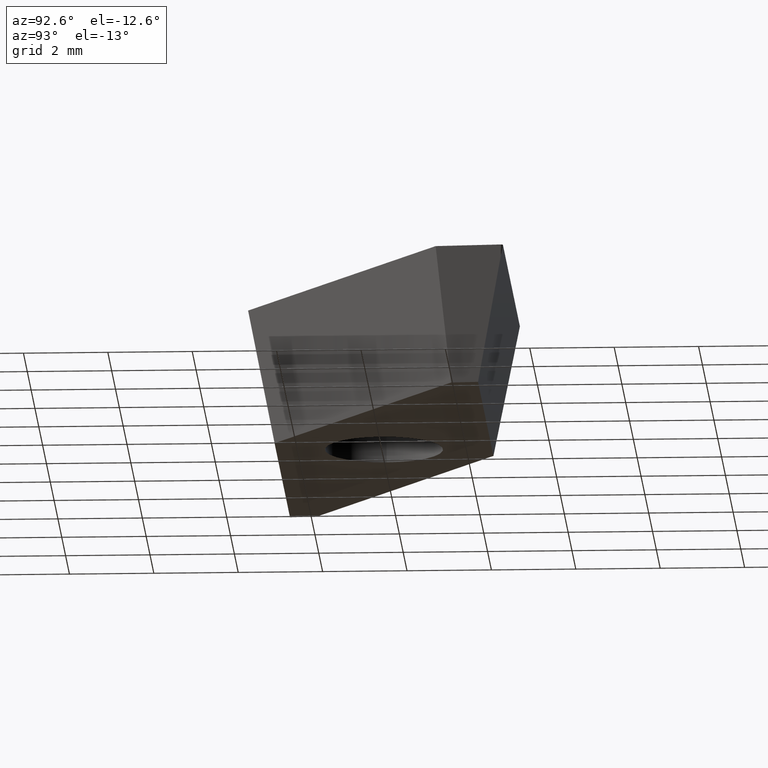
[diagram: clean part render]
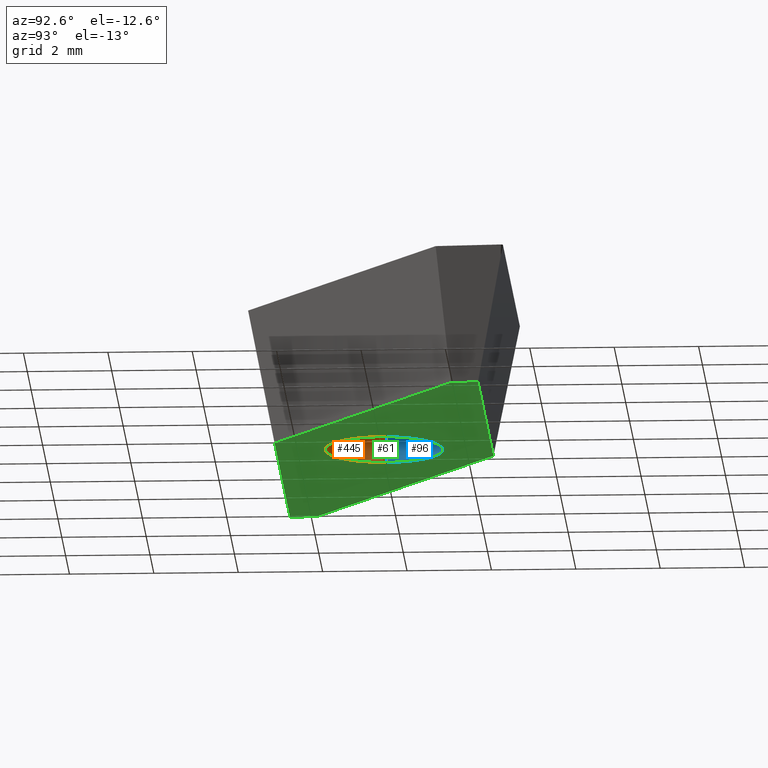
[diagram: same view with three faces highlighted in distinct colors, each labeled with its STEP entity id]
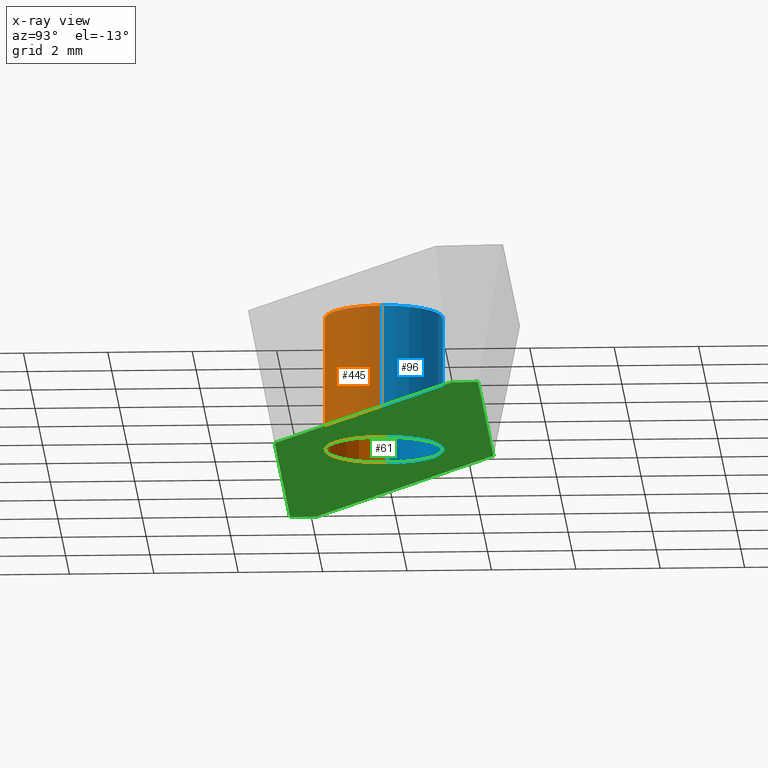
[diagram: x-ray of the same camera — body ghosted, the three highlighted faces saturated]
A machine part, auxiliary view with three faces highlighted in distinct colors.
The next image is the same camera in x-ray (body ghosted, the three faces saturated) — at least one of them is partly hidden behind the body in this view.
Their STEP definitions:

[orange] entity #445 — the highlighted cylindrical surface (partial cylindrical patch) has radius 1.4 mm, axis along (-0, -0, 1).
#56 = DIRECTION ( 'NONE',  ( 1.000000000000000000, 0.0000000000000000000, 0.0000000000000000000 ) ) ;
#82 = DIRECTION ( 'NONE',  ( 0.0000000000000000000, 0.0000000000000000000, 1.000000000000000000 ) ) ;
#87 = CARTESIAN_POINT ( 'NONE',  ( 1.399999999999999900, 0.0000000000000000000, 0.0000000000000000000 ) ) ;
#106 = CARTESIAN_POINT ( 'NONE',  ( 0.0000000000000000000, 0.0000000000000000000, 0.0000000000000000000 ) ) ;
#107 = DIRECTION ( 'NONE',  ( -0.0000000000000000000, -0.0000000000000000000, 1.000000000000000000 ) ) ;
#112 = VERTEX_POINT ( 'NONE', #128 ) ;
#115 = DIRECTION ( 'NONE',  ( 1.000000000000000000, 0.0000000000000000000, 0.0000000000000000000 ) ) ;
#120 = CARTESIAN_POINT ( 'NONE',  ( -1.399999999999999900, 1.714505518806294100E-016, -3.180000000000000200 ) ) ;
#126 = DIRECTION ( 'NONE',  ( -0.0000000000000000000, -0.0000000000000000000, 1.000000000000000000 ) ) ;
#128 = CARTESIAN_POINT ( 'NONE',  ( -1.399999999999999900, 1.714505518806294100E-016, 0.0000000000000000000 ) ) ;
#134 = CARTESIAN_POINT ( 'NONE',  ( 1.399999999999999900, 0.0000000000000000000, -3.180000000000000200 ) ) ;
#140 = AXIS2_PLACEMENT_3D ( 'NONE', #161, #107, #115 ) ;
#149 = ORIENTED_EDGE ( 'NONE', *, *, #354, .T. ) ;
#153 = DIRECTION ( 'NONE',  ( -0.0000000000000000000, -0.0000000000000000000, 1.000000000000000000 ) ) ;
#155 = AXIS2_PLACEMENT_3D ( 'NONE', #173, #172, #171 ) ;
#161 = CARTESIAN_POINT ( 'NONE',  ( 0.0000000000000000000, 0.0000000000000000000, -3.180000000000000200 ) ) ;
#171 = DIRECTION ( 'NONE',  ( 1.000000000000000000, 0.0000000000000000000, 0.0000000000000000000 ) ) ;
#172 = DIRECTION ( 'NONE',  ( 0.0000000000000000000, 0.0000000000000000000, 1.000000000000000000 ) ) ;
#173 = CARTESIAN_POINT ( 'NONE',  ( 0.0000000000000000000, 0.0000000000000000000, -3.180000000000000200 ) ) ;
#198 = ORIENTED_EDGE ( 'NONE', *, *, #409, .F. ) ;
#207 = CARTESIAN_POINT ( 'NONE',  ( -1.399999999999999900, 1.714505518806294100E-016, -3.180000000000000200 ) ) ;
#210 = ORIENTED_EDGE ( 'NONE', *, *, #399, .F. ) ;
#250 = VERTEX_POINT ( 'NONE', #207 ) ;
#263 = VECTOR ( 'NONE', #153, 1000.000000000000000 ) ;
#281 = VERTEX_POINT ( 'NONE', #87 ) ;
#295 = LINE ( 'NONE', #120, #263 ) ;
#297 = VECTOR ( 'NONE', #126, 1000.000000000000000 ) ;
#308 = CYLINDRICAL_SURFACE ( 'NONE', #140, 1.399999999999999900 ) ;
#310 = VERTEX_POINT ( 'NONE', #398 ) ;
#320 = FACE_OUTER_BOUND ( 'NONE', #347, .T. ) ;
#343 = LINE ( 'NONE', #134, #297 ) ;
#347 = EDGE_LOOP ( 'NONE', ( #210, #388, #149, #198 ) ) ;
#348 = CIRCLE ( 'NONE', #420, 1.399999999999999900 ) ;
#354 = EDGE_CURVE ( 'NONE', #112, #281, #348, .T. ) ;
#375 = CIRCLE ( 'NONE', #155, 1.399999999999999900 ) ;
#388 = ORIENTED_EDGE ( 'NONE', *, *, #423, .T. ) ;
#398 = CARTESIAN_POINT ( 'NONE',  ( 1.399999999999999900, 0.0000000000000000000, -3.180000000000000200 ) ) ;
#399 = EDGE_CURVE ( 'NONE', #250, #310, #375, .T. ) ;
#409 = EDGE_CURVE ( 'NONE', #310, #281, #343, .T. ) ;
#420 = AXIS2_PLACEMENT_3D ( 'NONE', #106, #82, #56 ) ;
#423 = EDGE_CURVE ( 'NONE', #250, #112, #295, .T. ) ;
#445 = ADVANCED_FACE ( 'NONE', ( #320 ), #308, .F. ) ;

[blue] entity #96 — the highlighted cylindrical surface (partial cylindrical patch) has radius 1.4 mm, axis along (-0, -0, 1).
#19 = DIRECTION ( 'NONE',  ( -0.0000000000000000000, -0.0000000000000000000, 1.000000000000000000 ) ) ;
#76 = CYLINDRICAL_SURFACE ( 'NONE', #385, 1.399999999999999900 ) ;
#87 = CARTESIAN_POINT ( 'NONE',  ( 1.399999999999999900, 0.0000000000000000000, 0.0000000000000000000 ) ) ;
#88 = AXIS2_PLACEMENT_3D ( 'NONE', #242, #238, #237 ) ;
#96 = ADVANCED_FACE ( 'NONE', ( #117 ), #76, .F. ) ;
#112 = VERTEX_POINT ( 'NONE', #128 ) ;
#117 = FACE_OUTER_BOUND ( 'NONE', #334, .T. ) ;
#120 = CARTESIAN_POINT ( 'NONE',  ( -1.399999999999999900, 1.714505518806294100E-016, -3.180000000000000200 ) ) ;
#126 = DIRECTION ( 'NONE',  ( -0.0000000000000000000, -0.0000000000000000000, 1.000000000000000000 ) ) ;
#128 = CARTESIAN_POINT ( 'NONE',  ( -1.399999999999999900, 1.714505518806294100E-016, 0.0000000000000000000 ) ) ;
#134 = CARTESIAN_POINT ( 'NONE',  ( 1.399999999999999900, 0.0000000000000000000, -3.180000000000000200 ) ) ;
#153 = DIRECTION ( 'NONE',  ( -0.0000000000000000000, -0.0000000000000000000, 1.000000000000000000 ) ) ;
#189 = AXIS2_PLACEMENT_3D ( 'NONE', #197, #203, #206 ) ;
#197 = CARTESIAN_POINT ( 'NONE',  ( 0.0000000000000000000, 0.0000000000000000000, -3.180000000000000200 ) ) ;
#203 = DIRECTION ( 'NONE',  ( 0.0000000000000000000, 0.0000000000000000000, 1.000000000000000000 ) ) ;
#206 = DIRECTION ( 'NONE',  ( 1.000000000000000000, 0.0000000000000000000, 0.0000000000000000000 ) ) ;
#207 = CARTESIAN_POINT ( 'NONE',  ( -1.399999999999999900, 1.714505518806294100E-016, -3.180000000000000200 ) ) ;
#237 = DIRECTION ( 'NONE',  ( 1.000000000000000000, 0.0000000000000000000, 0.0000000000000000000 ) ) ;
#238 = DIRECTION ( 'NONE',  ( 0.0000000000000000000, 0.0000000000000000000, 1.000000000000000000 ) ) ;
#242 = CARTESIAN_POINT ( 'NONE',  ( 0.0000000000000000000, 0.0000000000000000000, 0.0000000000000000000 ) ) ;
#250 = VERTEX_POINT ( 'NONE', #207 ) ;
#263 = VECTOR ( 'NONE', #153, 1000.000000000000000 ) ;
#281 = VERTEX_POINT ( 'NONE', #87 ) ;
#295 = LINE ( 'NONE', #120, #263 ) ;
#297 = VECTOR ( 'NONE', #126, 1000.000000000000000 ) ;
#310 = VERTEX_POINT ( 'NONE', #398 ) ;
#334 = EDGE_LOOP ( 'NONE', ( #387, #382, #384, #351 ) ) ;
#342 = EDGE_CURVE ( 'NONE', #310, #250, #446, .T. ) ;
#343 = LINE ( 'NONE', #134, #297 ) ;
#351 = ORIENTED_EDGE ( 'NONE', *, *, #381, .T. ) ;
#381 = EDGE_CURVE ( 'NONE', #281, #112, #430, .T. ) ;
#382 = ORIENTED_EDGE ( 'NONE', *, *, #342, .F. ) ;
#384 = ORIENTED_EDGE ( 'NONE', *, *, #409, .T. ) ;
#385 = AXIS2_PLACEMENT_3D ( 'NONE', #413, #19, #434 ) ;
#387 = ORIENTED_EDGE ( 'NONE', *, *, #423, .F. ) ;
#398 = CARTESIAN_POINT ( 'NONE',  ( 1.399999999999999900, 0.0000000000000000000, -3.180000000000000200 ) ) ;
#409 = EDGE_CURVE ( 'NONE', #310, #281, #343, .T. ) ;
#413 = CARTESIAN_POINT ( 'NONE',  ( 0.0000000000000000000, 0.0000000000000000000, -3.180000000000000200 ) ) ;
#423 = EDGE_CURVE ( 'NONE', #250, #112, #295, .T. ) ;
#430 = CIRCLE ( 'NONE', #88, 1.399999999999999900 ) ;
#434 = DIRECTION ( 'NONE',  ( 1.000000000000000000, 0.0000000000000000000, 0.0000000000000000000 ) ) ;
#446 = CIRCLE ( 'NONE', #189, 1.399999999999999900 ) ;

[green] entity #61 — the highlighted planar face has unit normal (0, 0, -1).
#4 = DIRECTION ( 'NONE',  ( -0.8191520442889950200, -0.5735764363510415000, 0.0000000000000000000 ) ) ;
#9 = CARTESIAN_POINT ( 'NONE',  ( -7.237137390861799500, -2.556870616942054300, -3.180000000000000200 ) ) ;
#13 = CARTESIAN_POINT ( 'NONE',  ( 7.283376349052109500, 3.218118526079754900, -3.180000000000000200 ) ) ;
#41 = AXIS2_PLACEMENT_3D ( 'NONE', #147, #274, #163 ) ;
#60 = DIRECTION ( 'NONE',  ( 0.06975647374412545500, 0.9975640502598242000, 0.0000000000000000000 ) ) ;
#61 = ADVANCED_FACE ( 'NONE', ( #168, #166 ), #276, .T. ) ;
#62 = VECTOR ( 'NONE', #4, 1000.000000000000000 ) ;
#71 = LINE ( 'NONE', #418, #62 ) ;
#86 = VERTEX_POINT ( 'NONE', #229 ) ;
#90 = VECTOR ( 'NONE', #133, 1000.000000000000000 ) ;
#92 = LINE ( 'NONE', #312, #90 ) ;
#93 = EDGE_CURVE ( 'NONE', #86, #313, #92, .T. ) ;
#103 = CARTESIAN_POINT ( 'NONE',  ( -0.8061782088420828000, 2.556870616942053400, -3.180000000000000200 ) ) ;
#121 = EDGE_CURVE ( 'NONE', #313, #236, #71, .T. ) ;
#123 = CARTESIAN_POINT ( 'NONE',  ( 1.001073654690762600, -2.556870616942053400, -3.180000000000000200 ) ) ;
#133 = DIRECTION ( 'NONE',  ( -1.000000000000000000, -9.744461978823350000E-017, 0.0000000000000000000 ) ) ;
#144 = CARTESIAN_POINT ( 'NONE',  ( 7.433744630409206500, 2.083801351424741500, -3.180000000000000200 ) ) ;
#147 = CARTESIAN_POINT ( 'NONE',  ( 0.0000000000000000000, 0.0000000000000000000, -3.180000000000000200 ) ) ;
#148 = DIRECTION ( 'NONE',  ( 1.000000000000000000, 9.744461978823350000E-017, 0.0000000000000000000 ) ) ;
#155 = AXIS2_PLACEMENT_3D ( 'NONE', #173, #172, #171 ) ;
#163 = DIRECTION ( 'NONE',  ( -1.000000000000000000, 0.0000000000000000000, -0.0000000000000000000 ) ) ;
#166 = FACE_OUTER_BOUND ( 'NONE', #357, .T. ) ;
#168 = FACE_BOUND ( 'NONE', #304, .T. ) ;
#171 = DIRECTION ( 'NONE',  ( 1.000000000000000000, 0.0000000000000000000, 0.0000000000000000000 ) ) ;
#172 = DIRECTION ( 'NONE',  ( 0.0000000000000000000, 0.0000000000000000000, 1.000000000000000000 ) ) ;
#173 = CARTESIAN_POINT ( 'NONE',  ( 0.0000000000000000000, 0.0000000000000000000, -3.180000000000000200 ) ) ;
#174 = DIRECTION ( 'NONE',  ( 0.8191520442889951300, 0.5735764363510412700, 0.0000000000000000000 ) ) ;
#182 = DIRECTION ( 'NONE',  ( -0.06975647374412608000, -0.9975640502598242000, 0.0000000000000000000 ) ) ;
#189 = AXIS2_PLACEMENT_3D ( 'NONE', #197, #203, #206 ) ;
#197 = CARTESIAN_POINT ( 'NONE',  ( 0.0000000000000000000, 0.0000000000000000000, -3.180000000000000200 ) ) ;
#203 = DIRECTION ( 'NONE',  ( 0.0000000000000000000, 0.0000000000000000000, 1.000000000000000000 ) ) ;
#206 = DIRECTION ( 'NONE',  ( 1.000000000000000000, 0.0000000000000000000, 0.0000000000000000000 ) ) ;
#207 = CARTESIAN_POINT ( 'NONE',  ( -1.399999999999999900, 1.714505518806294100E-016, -3.180000000000000200 ) ) ;
#218 = CARTESIAN_POINT ( 'NONE',  ( -7.283376349052111300, -3.218118526079755300, -3.180000000000000200 ) ) ;
#219 = VERTEX_POINT ( 'NONE', #9 ) ;
#229 = CARTESIAN_POINT ( 'NONE',  ( 7.237137390861797700, 2.556870616942054300, -3.180000000000000200 ) ) ;
#236 = VERTEX_POINT ( 'NONE', #439 ) ;
#239 = VECTOR ( 'NONE', #60, 1000.000000000000100 ) ;
#240 = CARTESIAN_POINT ( 'NONE',  ( 7.192231910145610000, 1.914692324122640600, -3.180000000000000200 ) ) ;
#250 = VERTEX_POINT ( 'NONE', #207 ) ;
#259 = LINE ( 'NONE', #13, #239 ) ;
#266 = VERTEX_POINT ( 'NONE', #240 ) ;
#274 = DIRECTION ( 'NONE',  ( 0.0000000000000000000, 0.0000000000000000000, -1.000000000000000000 ) ) ;
#276 = PLANE ( 'NONE',  #41 ) ;
#280 = VECTOR ( 'NONE', #148, 1000.000000000000000 ) ;
#282 = CARTESIAN_POINT ( 'NONE',  ( 0.8061782088420801400, -2.556870616942053400, -3.180000000000000200 ) ) ;
#285 = VECTOR ( 'NONE', #174, 1000.000000000000000 ) ;
#290 = ORIENTED_EDGE ( 'NONE', *, *, #342, .T. ) ;
#292 = ORIENTED_EDGE ( 'NONE', *, *, #399, .T. ) ;
#293 = ORIENTED_EDGE ( 'NONE', *, *, #93, .F. ) ;
#294 = ORIENTED_EDGE ( 'NONE', *, *, #432, .F. ) ;
#299 = ORIENTED_EDGE ( 'NONE', *, *, #422, .F. ) ;
#300 = ORIENTED_EDGE ( 'NONE', *, *, #414, .F. ) ;
#301 = ORIENTED_EDGE ( 'NONE', *, *, #397, .F. ) ;
#302 = ORIENTED_EDGE ( 'NONE', *, *, #121, .F. ) ;
#304 = EDGE_LOOP ( 'NONE', ( #290, #292 ) ) ;
#310 = VERTEX_POINT ( 'NONE', #398 ) ;
#312 = CARTESIAN_POINT ( 'NONE',  ( -1.001073654690764600, 2.556870616942053400, -3.180000000000000200 ) ) ;
#313 = VERTEX_POINT ( 'NONE', #103 ) ;
#328 = LINE ( 'NONE', #123, #280 ) ;
#342 = EDGE_CURVE ( 'NONE', #310, #250, #446, .T. ) ;
#357 = EDGE_LOOP ( 'NONE', ( #293, #294, #299, #300, #301, #302 ) ) ;
#365 = VERTEX_POINT ( 'NONE', #282 ) ;
#373 = VECTOR ( 'NONE', #182, 1000.000000000000100 ) ;
#375 = CIRCLE ( 'NONE', #155, 1.399999999999999900 ) ;
#397 = EDGE_CURVE ( 'NONE', #236, #219, #404, .T. ) ;
#398 = CARTESIAN_POINT ( 'NONE',  ( 1.399999999999999900, 0.0000000000000000000, -3.180000000000000200 ) ) ;
#399 = EDGE_CURVE ( 'NONE', #250, #310, #375, .T. ) ;
#404 = LINE ( 'NONE', #218, #373 ) ;
#412 = LINE ( 'NONE', #144, #285 ) ;
#414 = EDGE_CURVE ( 'NONE', #219, #365, #328, .T. ) ;
#418 = CARTESIAN_POINT ( 'NONE',  ( -7.433744630409207400, -2.083801351424743800, -3.180000000000000200 ) ) ;
#422 = EDGE_CURVE ( 'NONE', #365, #266, #412, .T. ) ;
#432 = EDGE_CURVE ( 'NONE', #266, #86, #259, .T. ) ;
#439 = CARTESIAN_POINT ( 'NONE',  ( -7.192231910145610900, -1.914692324122642800, -3.180000000000000200 ) ) ;
#446 = CIRCLE ( 'NONE', #189, 1.399999999999999900 ) ;